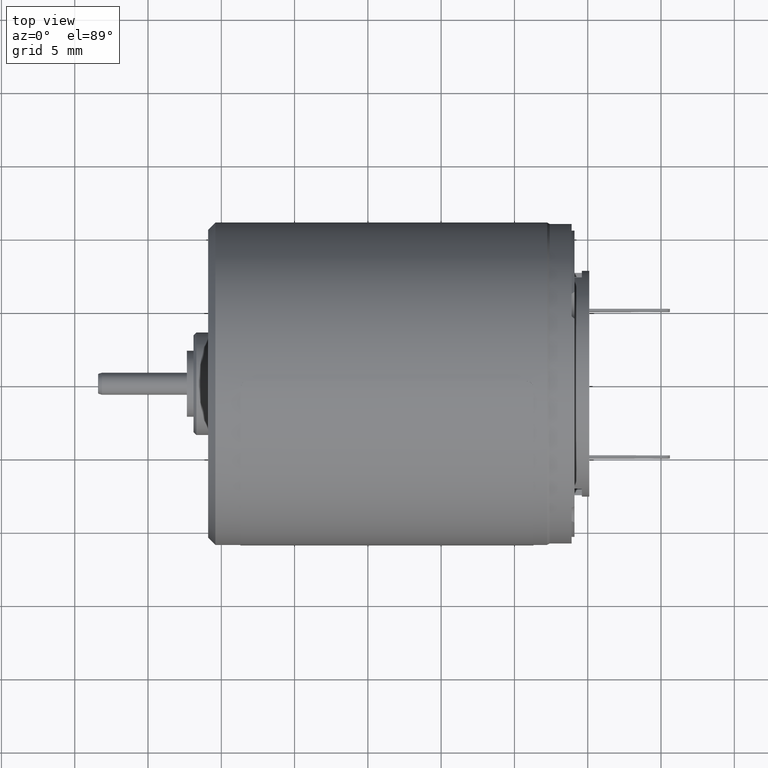
[diagram: clean part render]
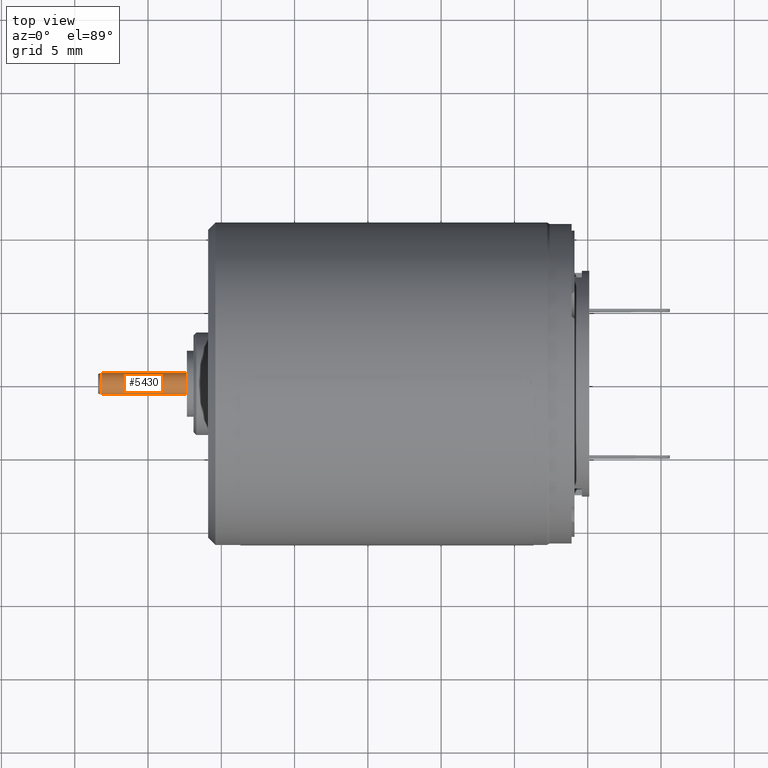
[diagram: same view with one face highlighted and labeled with its STEP entity id]
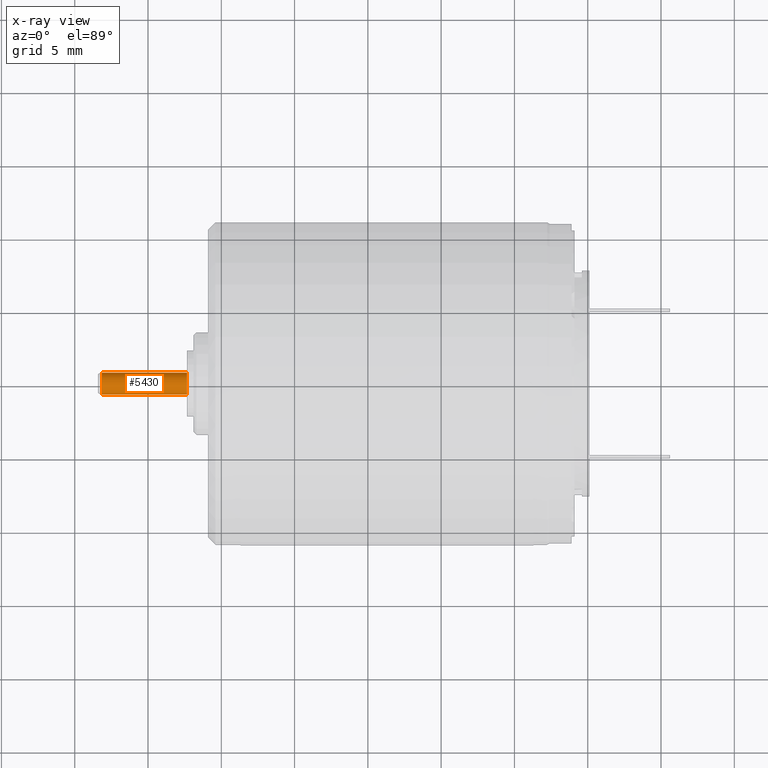
[diagram: x-ray of the same camera — body ghosted, the highlighted face saturated]
A machine part, top view. The second image highlights one B-rep face of the part: STEP entity #5430.
The next image is the same camera in x-ray: the body ghosted, the highlighted face saturated — about 0% of this face is hidden behind the body in this view.
In plain terms, the highlighted cylindrical surface (edge-blend (fillet) strip) has radius 0.75 mm, axis along (-1, 0, 0).
Its self-contained STEP definition (entity closure, byte-faithful):
#82=CARTESIAN_POINT('',(-1.735E1,1.437123018789E-14,0.E0));
#83=DIRECTION('',(-1.E0,0.E0,0.E0));
#84=DIRECTION('',(0.E0,-1.E0,-1.111325590512E-10));
#85=AXIS2_PLACEMENT_3D('',#82,#83,#84);
#87=DIRECTION('',(-1.E0,1.153865940683E-14,-9.368921917405E-11));
#88=VECTOR('',#87,5.792304263950E0);
#89=CARTESIAN_POINT('',(-1.735E1,-7.5E-1,-8.334941928843E-11));
#90=LINE('',#89,#88);
#91=CARTESIAN_POINT('',(-2.314230426395E1,1.508058287552E-14,0.E0));
#92=DIRECTION('',(-1.E0,0.E0,0.E0));
#93=DIRECTION('',(0.E0,-1.E0,0.E0));
#94=AXIS2_PLACEMENT_3D('',#91,#92,#93);
#96=DIRECTION('',(1.E0,1.125115128207E-14,-1.080788599134E-10));
#97=VECTOR('',#96,5.792304263950E0);
#98=CARTESIAN_POINT('',(-2.314230426395E1,7.499999999999E-1,
6.260258014644E-10));
#99=LINE('',#98,#97);
#4202=CARTESIAN_POINT('',(-2.314230426395E1,-7.499999999998E-1,0.E0));
#4203=CARTESIAN_POINT('',(-2.314230426395E1,7.499999999999E-1,0.E0));
#4204=VERTEX_POINT('',#4202);
#4205=VERTEX_POINT('',#4203);
#4994=CARTESIAN_POINT('',(-1.735E1,7.5E-1,0.E0));
#4995=CARTESIAN_POINT('',(-1.735E1,-7.5E-1,-8.334956795775E-11));
#4996=VERTEX_POINT('',#4994);
#4997=VERTEX_POINT('',#4995);
#5418=CARTESIAN_POINT('',(1.023846085279E0,1.212108300834E-14,0.E0));
#5419=DIRECTION('',(-1.E0,0.E0,0.E0));
#5420=DIRECTION('',(0.E0,1.E0,0.E0));
#5421=AXIS2_PLACEMENT_3D('',#5418,#5419,#5420);
#5422=CYLINDRICAL_SURFACE('',#5421,7.5E-1);
#5423=ORIENTED_EDGE('',*,*,#5371,.F.);
#5424=ORIENTED_EDGE('',*,*,#5339,.T.);
#5426=ORIENTED_EDGE('',*,*,#5425,.T.);
#5427=ORIENTED_EDGE('',*,*,#5335,.T.);
#5428=EDGE_LOOP('',(#5423,#5424,#5426,#5427));
#5429=FACE_OUTER_BOUND('',#5428,.F.);
#5430=ADVANCED_FACE('',(#5429),#5422,.T.);
#86=CIRCLE('',#85,7.5E-1);
#95=CIRCLE('',#94,7.5E-1);
#5335=EDGE_CURVE('',#4205,#4996,#99,.T.);
#5339=EDGE_CURVE('',#4997,#4204,#90,.T.);
#5371=EDGE_CURVE('',#4997,#4996,#86,.T.);
#5425=EDGE_CURVE('',#4204,#4205,#95,.T.);